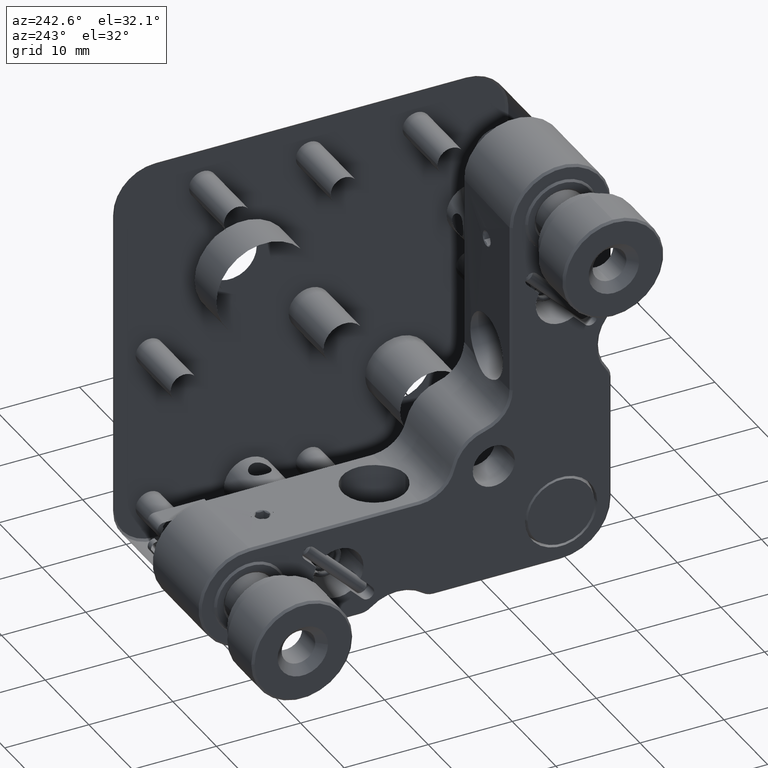
[diagram: clean part render]
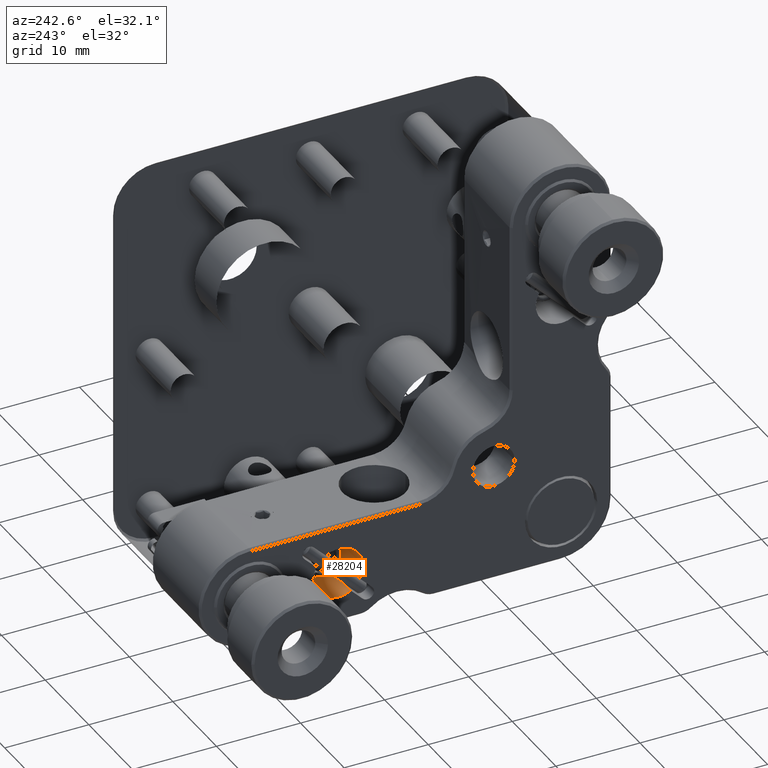
[diagram: same view with one face highlighted and labeled with its STEP entity id]
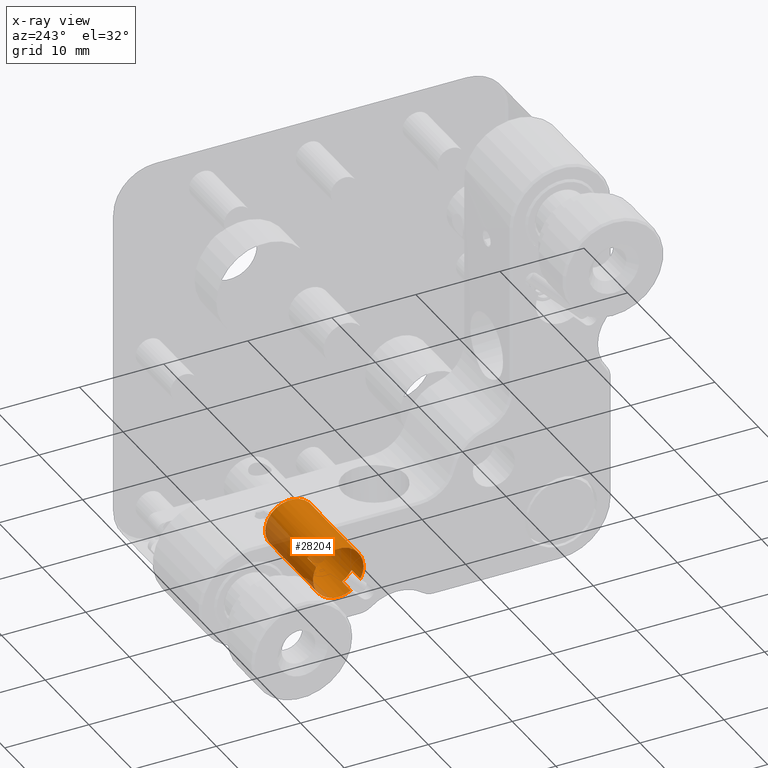
[diagram: x-ray of the same camera — body ghosted, the highlighted face saturated]
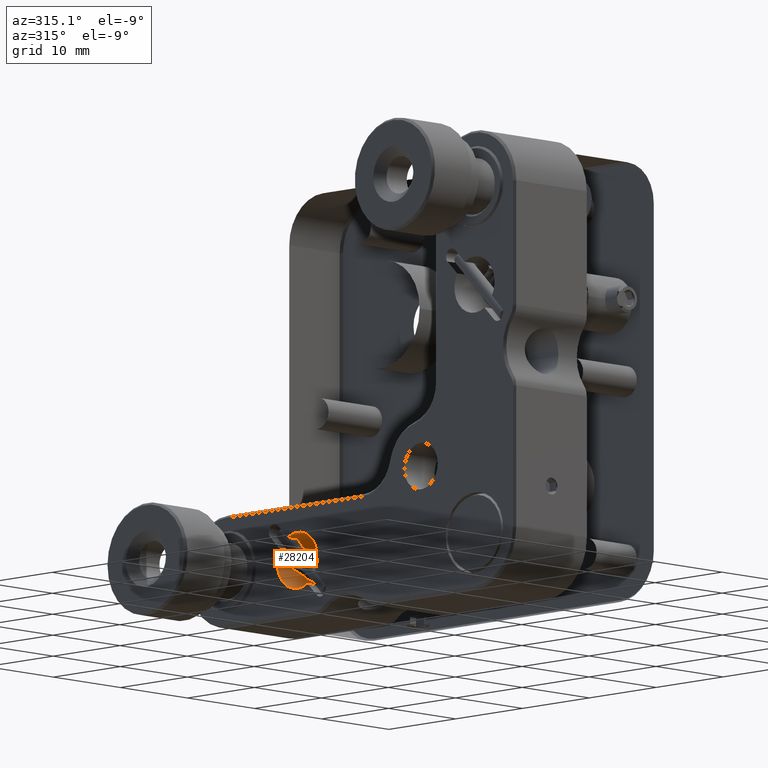
[diagram: same view with one face highlighted and labeled with its STEP entity id]
A machine part, auxiliary view. The second image highlights one B-rep face of the part: STEP entity #28204.
The next image is the same camera in x-ray: the body ghosted, the highlighted face saturated — about 16% of this face is hidden behind the body in this view.
A second angle (auxiliary view) of the same face is appended — the face is thin or edge-on in the first view.
In plain terms, the highlighted cylindrical surface (bore or boss wall) has radius 3 mm, axis along (-1, 0, 0).
Its self-contained STEP definition (entity closure, byte-faithful):
#87 = DIRECTION ( 'NONE',  ( -1.000000000000000000, 2.775557561562891351E-16, 0.000000000000000000 ) ) ;
#545 = VERTEX_POINT ( 'NONE', #9012 ) ;
#665 = VECTOR ( 'NONE', #30134, 1000.000000000000000 ) ;
#894 = LINE ( 'NONE', #8290, #1818 ) ;
#959 = VERTEX_POINT ( 'NONE', #9625 ) ;
#1180 = EDGE_CURVE ( 'NONE', #19092, #19092, #5844, .T. ) ;
#1216 = EDGE_CURVE ( 'NONE', #545, #959, #22984, .T. ) ;
#1818 = VECTOR ( 'NONE', #24547, 1000.000000000000000 ) ;
#1945 = ORIENTED_EDGE ( 'NONE', *, *, #30517, .F. ) ;
#3260 = AXIS2_PLACEMENT_3D ( 'NONE', #10025, #87, #9704 ) ;
#3340 = EDGE_LOOP ( 'NONE', ( #4158, #29347, #23239, #16639, #4428, #13245, #8564, #1945 ) ) ;
#3460 = DIRECTION ( 'NONE',  ( -2.891205793294678326E-16, -1.000000000000000000, 0.000000000000000000 ) ) ;
#4158 = ORIENTED_EDGE ( 'NONE', *, *, #17028, .F. ) ;
#4428 = ORIENTED_EDGE ( 'NONE', *, *, #11789, .T. ) ;
#4598 = DIRECTION ( 'NONE',  ( 1.000000000000000000, -2.775557561562891351E-16, -0.000000000000000000 ) ) ;
#4727 = DIRECTION ( 'NONE',  ( -1.000000000000000000, 2.775557561562891351E-16, 0.000000000000000000 ) ) ;
#5179 = LINE ( 'NONE', #14802, #24477 ) ;
#5667 = CARTESIAN_POINT ( 'NONE',  ( -3.499999999999998668, 7.999999999999998224, -18.50000000000002842 ) ) ;
#5844 = CIRCLE ( 'NONE', #26504, 3.000000000000000000 ) ;
#7172 = CYLINDRICAL_SURFACE ( 'NONE', #3260, 3.000000000000000000 ) ;
#8290 = CARTESIAN_POINT ( 'NONE',  ( 5.500000000000002665, 6.521180594923136731, -21.11019025497534685 ) ) ;
#8564 = ORIENTED_EDGE ( 'NONE', *, *, #24721, .F. ) ;
#9012 = CARTESIAN_POINT ( 'NONE',  ( -3.499999999999997780, 10.61019025497531310, -17.02118059492315538 ) ) ;
#9423 = AXIS2_PLACEMENT_3D ( 'NONE', #21962, #19597, #22269 ) ;
#9625 = CARTESIAN_POINT ( 'NONE',  ( -3.499999999999998668, 9.478819405076871263, -15.88980974502471355 ) ) ;
#9641 = CARTESIAN_POINT ( 'NONE',  ( -3.499999999999998668, 7.999999999999998224, -18.50000000000002842 ) ) ;
#9704 = DIRECTION ( 'NONE',  ( -2.891205793294678326E-16, -1.000000000000000000, 0.000000000000000000 ) ) ;
#9728 = DIRECTION ( 'NONE',  ( -2.891205793294678326E-16, -1.000000000000000000, -2.312964634635742661E-15 ) ) ;
#9986 = VERTEX_POINT ( 'NONE', #29524 ) ;
#10025 = CARTESIAN_POINT ( 'NONE',  ( 5.500000000000002665, 7.999999999999996447, -18.50000000000002842 ) ) ;
#10569 = CARTESIAN_POINT ( 'NONE',  ( 5.500000000000002665, 7.999999999999996447, -18.50000000000002842 ) ) ;
#11789 = EDGE_CURVE ( 'NONE', #545, #25548, #29130, .T. ) ;
#12998 = CARTESIAN_POINT ( 'NONE',  ( -3.499999999999998668, 5.389809745024692234, -19.97881940507690857 ) ) ;
#13245 = ORIENTED_EDGE ( 'NONE', *, *, #16641, .F. ) ;
#14146 = CARTESIAN_POINT ( 'NONE',  ( -5.499999999999998224, 9.478819405076871263, -15.88980974502471355 ) ) ;
#14653 = VERTEX_POINT ( 'NONE', #18732 ) ;
#14802 = CARTESIAN_POINT ( 'NONE',  ( 5.500000000000002665, 9.478819405076867710, -15.88980974502471355 ) ) ;
#14839 = VERTEX_POINT ( 'NONE', #14146 ) ;
#15382 = AXIS2_PLACEMENT_3D ( 'NONE', #9641, #4598, #23546 ) ;
#15451 = DIRECTION ( 'NONE',  ( -2.891205793294678326E-16, -1.000000000000000000, 0.000000000000000000 ) ) ;
#15788 = CARTESIAN_POINT ( 'NONE',  ( -5.499999999999996447, 10.61019025497531310, -17.02118059492315538 ) ) ;
#16370 = CIRCLE ( 'NONE', #30985, 3.000000000000000000 ) ;
#16395 = CIRCLE ( 'NONE', #15382, 3.000000000000000000 ) ;
#16639 = ORIENTED_EDGE ( 'NONE', *, *, #1216, .F. ) ;
#16641 = EDGE_CURVE ( 'NONE', #9986, #25548, #28545, .T. ) ;
#17028 = EDGE_CURVE ( 'NONE', #14653, #20541, #20381, .T. ) ;
#18732 = CARTESIAN_POINT ( 'NONE',  ( -5.499999999999998224, 5.389809745024692234, -19.97881940507690501 ) ) ;
#19092 = VERTEX_POINT ( 'NONE', #26024 ) ;
#19597 = DIRECTION ( 'NONE',  ( 1.000000000000000000, -2.775557561562891351E-16, -0.000000000000000000 ) ) ;
#19661 = DIRECTION ( 'NONE',  ( 1.000000000000000000, -2.775557561562891351E-16, -0.000000000000000000 ) ) ;
#19678 = CARTESIAN_POINT ( 'NONE',  ( -3.499999999999997335, 10.61019025497531310, -17.02118059492315538 ) ) ;
#20039 = DIRECTION ( 'NONE',  ( 1.000000000000000000, -2.775557561562891351E-16, -0.000000000000000000 ) ) ;
#20381 = LINE ( 'NONE', #20840, #665 ) ;
#20541 = VERTEX_POINT ( 'NONE', #12998 ) ;
#20840 = CARTESIAN_POINT ( 'NONE',  ( 5.500000000000001776, 5.389809745024688681, -19.97881940507690857 ) ) ;
#21962 = CARTESIAN_POINT ( 'NONE',  ( -5.499999999999999112, 8.000000000000000000, -18.50000000000002842 ) ) ;
#22000 = EDGE_LOOP ( 'NONE', ( #25835 ) ) ;
#22053 = DIRECTION ( 'NONE',  ( -1.000000000000000000, 8.326672684688698705E-17, -8.326672684688672821E-17 ) ) ;
#22239 = DIRECTION ( 'NONE',  ( -1.000000000000000000, 2.775557561562891351E-16, 0.000000000000000000 ) ) ;
#22269 = DIRECTION ( 'NONE',  ( -2.891205793294678326E-16, -1.000000000000000000, 1.156482317317871331E-15 ) ) ;
#22490 = AXIS2_PLACEMENT_3D ( 'NONE', #5667, #20039, #3460 ) ;
#22802 = VECTOR ( 'NONE', #22053, 1000.000000000000000 ) ;
#22984 = CIRCLE ( 'NONE', #22490, 3.000000000000000000 ) ;
#23239 = ORIENTED_EDGE ( 'NONE', *, *, #27469, .F. ) ;
#23546 = DIRECTION ( 'NONE',  ( -2.891205793294678326E-16, -1.000000000000000000, -1.156482317317871331E-15 ) ) ;
#24065 = FACE_OUTER_BOUND ( 'NONE', #22000, .T. ) ;
#24155 = VERTEX_POINT ( 'NONE', #26289 ) ;
#24162 = EDGE_CURVE ( 'NONE', #14839, #14653, #16370, .T. ) ;
#24477 = VECTOR ( 'NONE', #4727, 1000.000000000000000 ) ;
#24547 = DIRECTION ( 'NONE',  ( -1.000000000000000000, 2.775557561562891351E-16, 0.000000000000000000 ) ) ;
#24721 = EDGE_CURVE ( 'NONE', #24155, #9986, #894, .T. ) ;
#25548 = VERTEX_POINT ( 'NONE', #15788 ) ;
#25835 = ORIENTED_EDGE ( 'NONE', *, *, #1180, .F. ) ;
#26024 = CARTESIAN_POINT ( 'NONE',  ( 5.500000000000001776, 4.999999999999996447, -18.50000000000002842 ) ) ;
#26289 = CARTESIAN_POINT ( 'NONE',  ( -3.499999999999998668, 6.521180594923138507, -21.11019025497534685 ) ) ;
#26421 = FACE_OUTER_BOUND ( 'NONE', #3340, .T. ) ;
#26504 = AXIS2_PLACEMENT_3D ( 'NONE', #10569, #22239, #15451 ) ;
#27469 = EDGE_CURVE ( 'NONE', #959, #14839, #5179, .T. ) ;
#28204 = ADVANCED_FACE ( 'NONE', ( #26421, #24065 ), #7172, .F. ) ;
#28545 = CIRCLE ( 'NONE', #9423, 3.000000000000000000 ) ;
#29111 = CARTESIAN_POINT ( 'NONE',  ( -5.499999999999997335, 8.000000000000000000, -18.50000000000002842 ) ) ;
#29130 = LINE ( 'NONE', #19678, #22802 ) ;
#29347 = ORIENTED_EDGE ( 'NONE', *, *, #24162, .F. ) ;
#29524 = CARTESIAN_POINT ( 'NONE',  ( -5.499999999999999112, 6.521180594923140283, -21.11019025497534685 ) ) ;
#30134 = DIRECTION ( 'NONE',  ( 1.000000000000000000, -2.775557561562891351E-16, -0.000000000000000000 ) ) ;
#30517 = EDGE_CURVE ( 'NONE', #20541, #24155, #16395, .T. ) ;
#30985 = AXIS2_PLACEMENT_3D ( 'NONE', #29111, #19661, #9728 ) ;